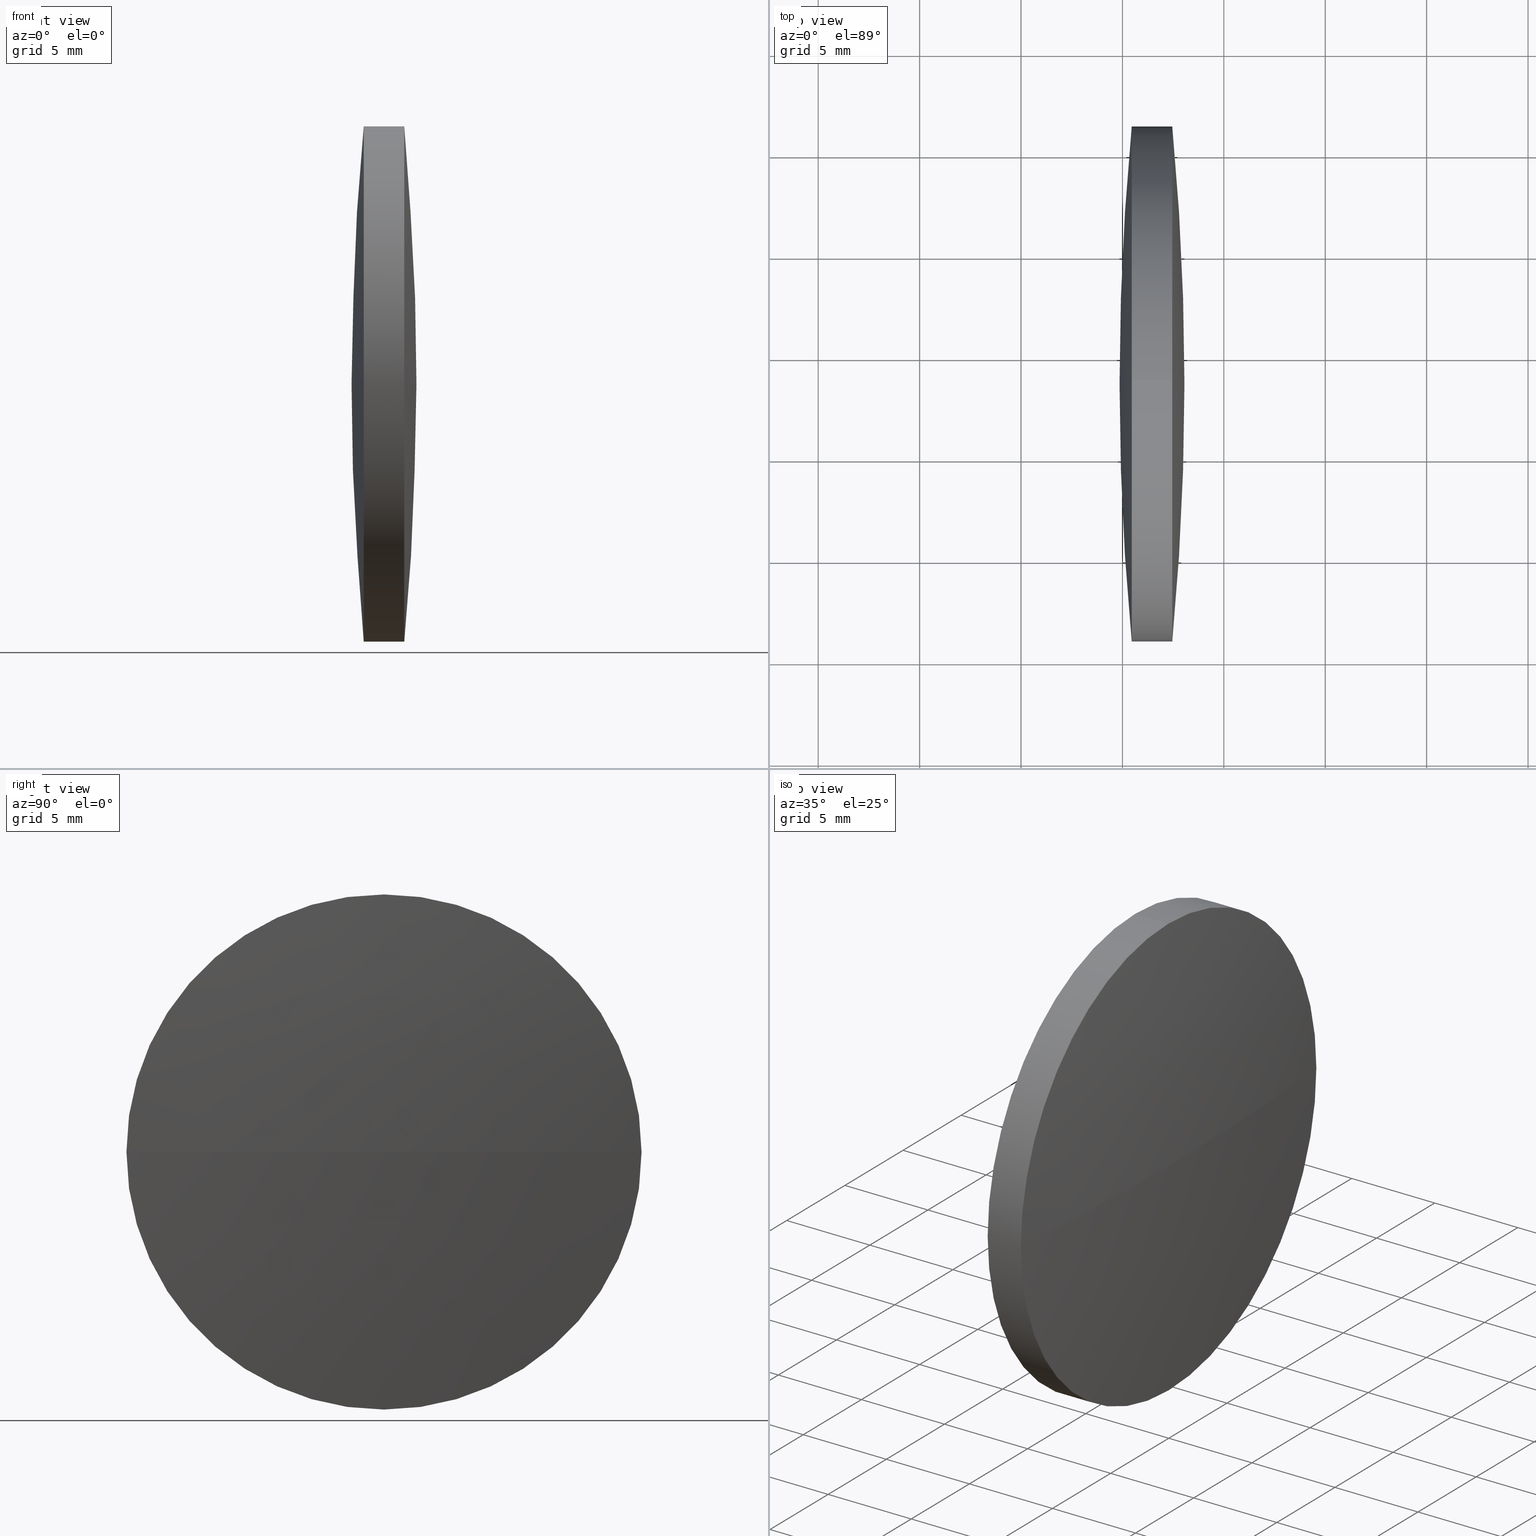
[diagram: canonical four-view strip — front | top / right | iso, engineering-drawing reading convention]
A machine part, canonical four-view strip (front | top / right | iso — engineering-drawing reading convention). The complete STEP part file that produces these views, byte-faithful:
ISO-10303-21;
HEADER;
FILE_DESCRIPTION (( 'STEP AP203' ),
    '1' );
FILE_NAME ('110156.STEP',
    '2019-07-09T05:30:51',
    ( '' ),
    ( '' ),
    'SwSTEP 2.0',
    'SolidWorks 2016',
    '' );
FILE_SCHEMA (( 'CONFIG_CONTROL_DESIGN' ));
ENDSEC;

DATA;
#1 = LOCAL_TIME ( 13, 30, 51.00000000000000000, #202 ) ;
#2 = EDGE_CURVE ( 'NONE', #343, #215, #87, .T. ) ;
#3 = ORIENTED_EDGE ( 'NONE', *, *, #2, .T. ) ;
#4 = DIRECTION ( 'NONE',  ( -1.000000000000000000, -0.0000000000000000000, -0.0000000000000000000 ) ) ;
#5 = CC_DESIGN_SECURITY_CLASSIFICATION ( #311, ( #200 ) ) ;
#6 = COORDINATED_UNIVERSAL_TIME_OFFSET ( 8, 0, .AHEAD. ) ;
#7 = DIRECTION ( 'NONE',  ( 0.0000000000000000000, 0.0000000000000000000, 1.000000000000000000 ) ) ;
#8 = CARTESIAN_POINT ( 'NONE',  ( 85.45852234609111500, 61.31611302318469800, 0.0000000000000000000 ) ) ;
#9 =( NAMED_UNIT ( * ) SI_UNIT ( $, .STERADIAN. ) SOLID_ANGLE_UNIT ( ) );
#10 = EDGE_CURVE ( 'NONE', #160, #180, #226, .T. ) ;
#11 = APPROVAL_ROLE ( '' ) ;
#12 = DATE_AND_TIME ( #219, #189 ) ;
#13 = DATE_AND_TIME ( #84, #159 ) ;
#14 = APPROVAL_STATUS ( 'not_yet_approved' ) ;
#15 = CC_DESIGN_PERSON_AND_ORGANIZATION_ASSIGNMENT ( #74, #310, ( #62 ) ) ;
#16 = PERSON_AND_ORGANIZATION_ROLE ( 'creator' ) ;
#17 = APPROVAL_STATUS ( 'not_yet_approved' ) ;
#18 = PERSON_AND_ORGANIZATION ( #89, #37 ) ;
#19 = ADVANCED_BREP_SHAPE_REPRESENTATION ( '110156', ( #199, #297 ), #85 ) ;
#20 = CC_DESIGN_PERSON_AND_ORGANIZATION_ASSIGNMENT ( #307, #286, ( #311 ) ) ;
#21 = LOCAL_TIME ( 13, 30, 51.00000000000000000, #122 ) ;
#22 = ORIENTED_EDGE ( 'NONE', *, *, #187, .F. ) ;
#23 = DIRECTION ( 'NONE',  ( -1.000000000000000000, -0.0000000000000000000, -0.0000000000000000000 ) ) ;
#24 = PERSON_AND_ORGANIZATION ( #89, #37 ) ;
#25 = CALENDAR_DATE ( 2019, 9, 7 ) ;
#26 = CARTESIAN_POINT ( 'NONE',  ( 87.45786520323396500, 48.61611302318478100, 0.0000000000000000000 ) ) ;
#27 = CC_DESIGN_DATE_AND_TIME_ASSIGNMENT ( #269, #123, ( #237 ) ) ;
#28 = CARTESIAN_POINT ( 'NONE',  ( 85.45852234609111500, 48.61611302318478100, 0.0000000000000000000 ) ) ;
#29 = DIRECTION ( 'NONE',  ( 0.0000000000000000000, -1.000000000000000000, -1.224646799147353000E-016 ) ) ;
#30 = APPROVAL_PERSON_ORGANIZATION ( #105, #185, #253 ) ;
#31 = EDGE_CURVE ( 'NONE', #296, #215, #308, .T. ) ;
#32 = VERTEX_POINT ( 'NONE', #131 ) ;
#33 = CARTESIAN_POINT ( 'NONE',  ( 87.45786520323396500, 48.61611302318478100, -12.69999999999999600 ) ) ;
#34 = CARTESIAN_POINT ( 'NONE',  ( 79.30540135083715800, 48.61611302318478100, 0.0000000000000000000 ) ) ;
#35 = APPROVAL_PERSON_ORGANIZATION ( #231, #79, #11 ) ;
#36 = CARTESIAN_POINT ( 'NONE',  ( 219.5296607706903600, 48.61611302318469500, 0.0000000000000000000 ) ) ;
#37 = ORGANIZATION ( 'δָ��', 'δָ��', '' ) ;
#38 = CARTESIAN_POINT ( 'NONE',  ( 0.0000000000000000000, 0.0000000000000000000, 0.0000000000000000000 ) ) ;
#39 = AXIS2_PLACEMENT_3D ( 'NONE', #225, #194, #29 ) ;
#40 = DIRECTION ( 'NONE',  ( 1.000000000000000000, 0.0000000000000000000, 0.0000000000000000000 ) ) ;
#41 = DATE_AND_TIME ( #112, #21 ) ;
#42 = CARTESIAN_POINT ( 'NONE',  ( 87.45786520323396500, 48.61611302318478100, 12.69999999999999600 ) ) ;
#43 = EDGE_LOOP ( 'NONE', ( #211, #250, #167, #63 ) ) ;
#44 = AXIS2_PLACEMENT_3D ( 'NONE', #36, #95, #67 ) ;
#45 = EDGE_CURVE ( 'NONE', #343, #160, #97, .T. ) ;
#46 = CC_DESIGN_APPROVAL ( #242, ( #237 ) ) ;
#47 = LOCAL_TIME ( 13, 30, 51.00000000000000000, #164 ) ;
#48 = FACE_OUTER_BOUND ( 'NONE', #206, .T. ) ;
#49 = ORIENTED_EDGE ( 'NONE', *, *, #45, .F. ) ;
#50 = EDGE_CURVE ( 'NONE', #315, #343, #221, .T. ) ;
#51 = DIRECTION ( 'NONE',  ( -1.000000000000000000, -0.0000000000000000000, -0.0000000000000000000 ) ) ;
#52 = ORIENTED_EDGE ( 'NONE', *, *, #283, .F. ) ;
#53 = AXIS2_PLACEMENT_3D ( 'NONE', #166, #224, #329 ) ;
#54 = PERSON_AND_ORGANIZATION ( #89, #37 ) ;
#55 = ORIENTED_EDGE ( 'NONE', *, *, #181, .T. ) ;
#56 = UNCERTAINTY_MEASURE_WITH_UNIT (LENGTH_MEASURE( 1.000000000000000100E-005 ), #93, 'distance_accuracy_value', 'NONE');
#57 = CARTESIAN_POINT ( 'NONE',  ( -46.61327322136452300, 48.61611302318488700, 0.0000000000000000000 ) ) ;
#58 = CC_DESIGN_APPROVAL ( #109, ( #62 ) ) ;
#59 = DIRECTION ( 'NONE',  ( -1.000000000000000000, -0.0000000000000000000, -0.0000000000000000000 ) ) ;
#60 = CARTESIAN_POINT ( 'NONE',  ( 85.45852234609111500, 48.61611302318478100, 12.69999999999999600 ) ) ;
#61 = APPROVAL_PERSON_ORGANIZATION ( #132, #242, #264 ) ;
#62 = PRODUCT_DEFINITION_FORMATION_WITH_SPECIFIED_SOURCE ( '�κ�', '', #99, .NOT_KNOWN. ) ;
#63 = ORIENTED_EDGE ( 'NONE', *, *, #81, .F. ) ;
#64 = CARTESIAN_POINT ( 'NONE',  ( 87.45786520323397900, 61.31611302318493300, 1.555301434917144000E-015 ) ) ;
#65 = APPROVAL_ROLE ( '' ) ;
#66 = APPLICATION_PROTOCOL_DEFINITION ( 'international standard', 'config_control_design', 1994, #71 ) ;
#67 = DIRECTION ( 'NONE',  ( 0.0000000000000000000, 1.000000000000000000, 0.0000000000000000000 ) ) ;
#68 = ORIENTED_EDGE ( 'NONE', *, *, #181, .F. ) ;
#69 = CC_DESIGN_SECURITY_CLASSIFICATION ( #237, ( #62 ) ) ;
#70 = SECURITY_CLASSIFICATION_LEVEL ( 'unclassified' ) ;
#71 = APPLICATION_CONTEXT ( 'configuration controlled 3d designs of mechanical parts and assemblies' ) ;
#72 = COORDINATED_UNIVERSAL_TIME_OFFSET ( 8, 0, .AHEAD. ) ;
#73 = ORIENTED_EDGE ( 'NONE', *, *, #10, .F. ) ;
#74 = PERSON_AND_ORGANIZATION ( #89, #37 ) ;
#75 = SPHERICAL_SURFACE ( 'NONE', #274, 134.6713041388842400 ) ;
#76 = CC_DESIGN_PERSON_AND_ORGANIZATION_ASSIGNMENT ( #83, #288, ( #237 ) ) ;
#77 = LOCAL_TIME ( 13, 30, 51.00000000000000000, #107 ) ;
#78 = DIRECTION ( 'NONE',  ( 0.0000000000000000000, 0.0000000000000000000, 1.000000000000000000 ) ) ;
#79 = APPROVAL ( #173, 'δָ��' ) ;
#80 = DIRECTION ( 'NONE',  ( -1.000000000000000000, -0.0000000000000000000, -0.0000000000000000000 ) ) ;
#81 = EDGE_CURVE ( 'NONE', #234, #156, #266, .T. ) ;
#82 = DIRECTION ( 'NONE',  ( -1.000000000000000000, -0.0000000000000000000, -0.0000000000000000000 ) ) ;
#83 = PERSON_AND_ORGANIZATION ( #89, #37 ) ;
#84 = CALENDAR_DATE ( 2019, 9, 7 ) ;
#85 =( GEOMETRIC_REPRESENTATION_CONTEXT ( 3 ) GLOBAL_UNCERTAINTY_ASSIGNED_CONTEXT ( ( #56 ) ) GLOBAL_UNIT_ASSIGNED_CONTEXT ( ( #93, #204, #9 ) ) REPRESENTATION_CONTEXT ( 'NONE', 'WORKASPACE' ) );
#86 = CARTESIAN_POINT ( 'NONE',  ( 85.45852234609111500, 48.61611302318478100, 0.0000000000000000000 ) ) ;
#87 = LINE ( 'NONE', #217, #301 ) ;
#88 = CARTESIAN_POINT ( 'NONE',  ( 87.45786520323396500, 48.61611302318478100, 0.0000000000000000000 ) ) ;
#89 = PERSON ( 'δָ��', 'δָ��', 'δָ��', ('δָ��'), ('δָ��'), ('δָ��') ) ;
#90 = ORIENTED_EDGE ( 'NONE', *, *, #10, .T. ) ;
#91 = DIRECTION ( 'NONE',  ( 0.0000000000000000000, 1.224646799147353200E-016, -1.000000000000000000 ) ) ;
#92 = CARTESIAN_POINT ( 'NONE',  ( -46.61327322136452300, 48.61611302318488700, 0.0000000000000000000 ) ) ;
#93 =( LENGTH_UNIT ( ) NAMED_UNIT ( * ) SI_UNIT ( .MILLI., .METRE. ) );
#94 = SPHERICAL_SURFACE ( 'NONE', #44, 134.6713041388849500 ) ;
#95 = DIRECTION ( 'NONE',  ( -0.0000000000000000000, 0.0000000000000000000, -1.000000000000000000 ) ) ;
#96 = PERSON_AND_ORGANIZATION_ROLE ( 'design_supplier' ) ;
#97 = CIRCLE ( 'NONE', #233, 12.69999999999999600 ) ;
#98 = PRODUCT_RELATED_PRODUCT_CATEGORY ( 'detail', '', ( #153 ) ) ;
#99 = PRODUCT ( '110156', '110156', '', ( #254 ) ) ;
#100 = ADVANCED_FACE ( 'NONE', ( #48 ), #108, .T. ) ;
#101 = DATE_AND_TIME ( #171, #77 ) ;
#102 = LOCAL_TIME ( 13, 30, 51.00000000000000000, #243 ) ;
#103 = EDGE_CURVE ( 'NONE', #299, #315, #241, .T. ) ;
#104 = CC_DESIGN_APPROVAL ( #185, ( #200 ) ) ;
#105 = PERSON_AND_ORGANIZATION ( #89, #37 ) ;
#106 = ORIENTED_EDGE ( 'NONE', *, *, #341, .T. ) ;
#107 = COORDINATED_UNIVERSAL_TIME_OFFSET ( 8, 0, .AHEAD. ) ;
#108 = CYLINDRICAL_SURFACE ( 'NONE', #53, 12.69999999999999600 ) ;
#109 = APPROVAL ( #203, 'δָ��' ) ;
#110 = AXIS2_PLACEMENT_3D ( 'NONE', #141, #91, #188 ) ;
#111 = DIRECTION ( 'NONE',  ( 0.0000000000000000000, 0.0000000000000000000, 1.000000000000000000 ) ) ;
#112 = CALENDAR_DATE ( 2019, 9, 7 ) ;
#113 = CARTESIAN_POINT ( 'NONE',  ( 219.5296607706903600, 48.61611302318469500, 0.0000000000000000000 ) ) ;
#114 = PRODUCT_RELATED_PRODUCT_CATEGORY ( 'detail', '', ( #99 ) ) ;
#115 = CC_DESIGN_DATE_AND_TIME_ASSIGNMENT ( #101, #331, ( #311 ) ) ;
#116 = DATE_AND_TIME ( #284, #252 ) ;
#117 = SPHERICAL_SURFACE ( 'NONE', #182, 134.6713041388849500 ) ;
#118 = EDGE_CURVE ( 'NONE', #299, #160, #148, .T. ) ;
#119 = APPROVAL_ROLE ( '' ) ;
#120 = PERSON_AND_ORGANIZATION_ROLE ( 'design_owner' ) ;
#121 = DATE_AND_TIME ( #209, #147 ) ;
#122 = COORDINATED_UNIVERSAL_TIME_OFFSET ( 8, 0, .AHEAD. ) ;
#123 = DATE_TIME_ROLE ( 'classification_date' ) ;
#124 = ORIENTED_EDGE ( 'NONE', *, *, #45, .T. ) ;
#125 = MECHANICAL_CONTEXT ( 'NONE', #334, 'mechanical' ) ;
#126 = APPROVAL_PERSON_ORGANIZATION ( #24, #109, #119 ) ;
#127 = ORIENTED_EDGE ( 'NONE', *, *, #341, .F. ) ;
#128 = CIRCLE ( 'NONE', #157, 12.69999999999999600 ) ;
#129 = AXIS2_PLACEMENT_3D ( 'NONE', #28, #228, #7 ) ;
#130 = DESIGN_CONTEXT ( 'detailed design', #235, 'design' ) ;
#131 = CARTESIAN_POINT ( 'NONE',  ( 85.45852234609111500, 48.61611302318478100, -12.69999999999999600 ) ) ;
#132 = PERSON_AND_ORGANIZATION ( #89, #37 ) ;
#133 = AXIS2_PLACEMENT_3D ( 'NONE', #38, #170, #40 ) ;
#134 = AXIS2_PLACEMENT_3D ( 'NONE', #300, #80, #78 ) ;
#135 = APPROVAL_DATE_TIME ( #116, #242 ) ;
#136 = FACE_OUTER_BOUND ( 'NONE', #43, .T. ) ;
#137 = ORIENTED_EDGE ( 'NONE', *, *, #103, .F. ) ;
#138 = CC_DESIGN_DATE_AND_TIME_ASSIGNMENT ( #41, #261, ( #192 ) ) ;
#139 = CARTESIAN_POINT ( 'NONE',  ( 88.05803091751970200, 48.61611302318488000, 0.0000000000000000000 ) ) ;
#140 = DIRECTION ( 'NONE',  ( 0.0000000000000000000, 0.0000000000000000000, 1.000000000000000000 ) ) ;
#141 = CARTESIAN_POINT ( 'NONE',  ( 219.5296607706903600, 48.61611302318469500, 0.0000000000000000000 ) ) ;
#142 = DATE_AND_TIME ( #294, #258 ) ;
#143 = ORIENTED_EDGE ( 'NONE', *, *, #103, .T. ) ;
#144 = DIRECTION ( 'NONE',  ( 1.000000000000000000, 0.0000000000000000000, 0.0000000000000000000 ) ) ;
#145 = DIRECTION ( 'NONE',  ( 0.0000000000000000000, 0.0000000000000000000, 1.000000000000000000 ) ) ;
#146 = CC_DESIGN_PERSON_AND_ORGANIZATION_ASSIGNMENT ( #265, #96, ( #200 ) ) ;
#147 = LOCAL_TIME ( 13, 30, 51.00000000000000000, #6 ) ;
#148 = CIRCLE ( 'NONE', #39, 134.6713041388842400 ) ;
#149 = ORIENTED_EDGE ( 'NONE', *, *, #118, .F. ) ;
#150 = APPLICATION_PROTOCOL_DEFINITION ( 'international standard', 'config_control_design', 1994, #197 ) ;
#151 = DESIGN_CONTEXT ( 'detailed design', #197, 'design' ) ;
#152 = APPROVAL_STATUS ( 'not_yet_approved' ) ;
#153 = PRODUCT ( '110156', '110156', '', ( #125 ) ) ;
#154 = DIRECTION ( 'NONE',  ( 0.0000000000000000000, 0.0000000000000000000, 1.000000000000000000 ) ) ;
#155 = APPROVAL_PERSON_ORGANIZATION ( #54, #220, #175 ) ;
#156 = VERTEX_POINT ( 'NONE', #227 ) ;
#157 = AXIS2_PLACEMENT_3D ( 'NONE', #86, #276, #251 ) ;
#158 = CALENDAR_DATE ( 2019, 9, 7 ) ;
#159 = LOCAL_TIME ( 13, 30, 51.00000000000000000, #190 ) ;
#160 = VERTEX_POINT ( 'NONE', #64 ) ;
#161 = AXIS2_PLACEMENT_3D ( 'NONE', #88, #4, #193 ) ;
#162 = CYLINDRICAL_SURFACE ( 'NONE', #248, 12.69999999999999600 ) ;
#163 = EDGE_LOOP ( 'NONE', ( #328, #244, #106, #275 ) ) ;
#164 = COORDINATED_UNIVERSAL_TIME_OFFSET ( 8, 0, .AHEAD. ) ;
#165 = CIRCLE ( 'NONE', #110, 134.6713041388849500 ) ;
#166 = CARTESIAN_POINT ( 'NONE',  ( 79.30540135083715800, 48.61611302318478100, 0.0000000000000000000 ) ) ;
#167 = ORIENTED_EDGE ( 'NONE', *, *, #174, .T. ) ;
#168 = CARTESIAN_POINT ( 'NONE',  ( 79.30540135083715800, 48.61611302318478100, -12.69999999999999600 ) ) ;
#169 = CC_DESIGN_PERSON_AND_ORGANIZATION_ASSIGNMENT ( #246, #120, ( #153 ) ) ;
#170 = DIRECTION ( 'NONE',  ( 0.0000000000000000000, 0.0000000000000000000, 1.000000000000000000 ) ) ;
#171 = CALENDAR_DATE ( 2019, 9, 7 ) ;
#172 = APPROVAL_PERSON_ORGANIZATION ( #232, #230, #65 ) ;
#173 = APPROVAL_STATUS ( 'not_yet_approved' ) ;
#174 = EDGE_CURVE ( 'NONE', #296, #156, #165, .T. ) ;
#175 = APPROVAL_ROLE ( '' ) ;
#176 = APPLICATION_PROTOCOL_DEFINITION ( 'international standard', 'config_control_design', 1994, #334 ) ;
#177 = AXIS2_PLACEMENT_3D ( 'NONE', #57, #140, #277 ) ;
#178 = DIRECTION ( 'NONE',  ( 1.000000000000000000, 0.0000000000000000000, 0.0000000000000000000 ) ) ;
#179 = SHAPE_DEFINITION_REPRESENTATION ( #218, #19 ) ;
#180 = VERTEX_POINT ( 'NONE', #33 ) ;
#181 = EDGE_CURVE ( 'NONE', #180, #32, #295, .T. ) ;
#182 = AXIS2_PLACEMENT_3D ( 'NONE', #113, #304, #337 ) ;
#183 = PERSON_AND_ORGANIZATION ( #89, #37 ) ;
#184 = APPROVAL_DATE_TIME ( #13, #230 ) ;
#185 = APPROVAL ( #17, 'δָ��' ) ;
#186 = FACE_OUTER_BOUND ( 'NONE', #287, .T. ) ;
#187 = EDGE_CURVE ( 'NONE', #234, #32, #285, .T. ) ;
#188 = DIRECTION ( 'NONE',  ( 0.0000000000000000000, 1.000000000000000000, 1.224646799147353500E-016 ) ) ;
#189 = LOCAL_TIME ( 13, 30, 51.00000000000000000, #72 ) ;
#190 = COORDINATED_UNIVERSAL_TIME_OFFSET ( 8, 0, .AHEAD. ) ;
#191 = ORIENTED_EDGE ( 'NONE', *, *, #50, .T. ) ;
#192 = PRODUCT_DEFINITION ( 'δ֪', '', #200, #151 ) ;
#193 = DIRECTION ( 'NONE',  ( 0.0000000000000000000, 0.0000000000000000000, 1.000000000000000000 ) ) ;
#194 = DIRECTION ( 'NONE',  ( 0.0000000000000000000, -1.224646799147353200E-016, 1.000000000000000000 ) ) ;
#195 = COORDINATED_UNIVERSAL_TIME_OFFSET ( 8, 0, .AHEAD. ) ;
#196 = CARTESIAN_POINT ( 'NONE',  ( 219.5296607706903600, 48.61611302318469500, 0.0000000000000000000 ) ) ;
#197 = APPLICATION_CONTEXT ( 'configuration controlled 3d designs of mechanical parts and assemblies' ) ;
#198 = CARTESIAN_POINT ( 'NONE',  ( 85.45852234609111500, 48.61611302318478100, 0.0000000000000000000 ) ) ;
#199 = MANIFOLD_SOLID_BREP ( '��ת1', #340 ) ;
#200 = PRODUCT_DEFINITION_FORMATION_WITH_SPECIFIED_SOURCE ( '�κ�', '', #153, .NOT_KNOWN. ) ;
#201 = DIRECTION ( 'NONE',  ( -1.000000000000000000, -0.0000000000000000000, -0.0000000000000000000 ) ) ;
#202 = COORDINATED_UNIVERSAL_TIME_OFFSET ( 8, 0, .AHEAD. ) ;
#203 = APPROVAL_STATUS ( 'not_yet_approved' ) ;
#204 =( NAMED_UNIT ( * ) PLANE_ANGLE_UNIT ( ) SI_UNIT ( $, .RADIAN. ) );
#205 = CALENDAR_DATE ( 2019, 9, 7 ) ;
#206 = EDGE_LOOP ( 'NONE', ( #68, #222, #191, #3, #239, #262 ) ) ;
#207 = CC_DESIGN_PERSON_AND_ORGANIZATION_ASSIGNMENT ( #183, #16, ( #200 ) ) ;
#208 = AXIS2_PLACEMENT_3D ( 'NONE', #322, #271, #272 ) ;
#209 = CALENDAR_DATE ( 2019, 9, 7 ) ;
#210 = SPHERICAL_SURFACE ( 'NONE', #177, 134.6713041388842400 ) ;
#211 = ORIENTED_EDGE ( 'NONE', *, *, #187, .T. ) ;
#212 = CC_DESIGN_PERSON_AND_ORGANIZATION_ASSIGNMENT ( #18, #259, ( #99 ) ) ;
#213 = EDGE_CURVE ( 'NONE', #32, #296, #128, .T. ) ;
#214 = DATE_AND_TIME ( #25, #102 ) ;
#215 = VERTEX_POINT ( 'NONE', #60 ) ;
#216 = DIRECTION ( 'NONE',  ( 0.0000000000000000000, 0.0000000000000000000, 1.000000000000000000 ) ) ;
#217 = CARTESIAN_POINT ( 'NONE',  ( 79.30540135083715800, 48.61611302318478100, 12.69999999999999600 ) ) ;
#218 = PRODUCT_DEFINITION_SHAPE ( 'NONE', 'NONE',  #263 ) ;
#219 = CALENDAR_DATE ( 2019, 9, 7 ) ;
#220 = APPROVAL ( #14, 'δָ��' ) ;
#221 = CIRCLE ( 'NONE', #247, 12.69999999999999600 ) ;
#222 = ORIENTED_EDGE ( 'NONE', *, *, #283, .T. ) ;
#223 = CARTESIAN_POINT ( 'NONE',  ( -46.61327322136452300, 48.61611302318488700, 0.0000000000000000000 ) ) ;
#224 = DIRECTION ( 'NONE',  ( -1.000000000000000000, -0.0000000000000000000, -0.0000000000000000000 ) ) ;
#225 = CARTESIAN_POINT ( 'NONE',  ( -46.61327322136452300, 48.61611302318488700, 0.0000000000000000000 ) ) ;
#226 = CIRCLE ( 'NONE', #134, 12.69999999999999600 ) ;
#227 = CARTESIAN_POINT ( 'NONE',  ( 84.85835663180540700, 48.61611302318470300, 0.0000000000000000000 ) ) ;
#228 = DIRECTION ( 'NONE',  ( -1.000000000000000000, -0.0000000000000000000, -0.0000000000000000000 ) ) ;
#229 = ADVANCED_FACE ( 'NONE', ( #335 ), #75, .T. ) ;
#230 = APPROVAL ( #152, 'δָ��' ) ;
#231 = PERSON_AND_ORGANIZATION ( #89, #37 ) ;
#232 = PERSON_AND_ORGANIZATION ( #89, #37 ) ;
#233 = AXIS2_PLACEMENT_3D ( 'NONE', #345, #23, #216 ) ;
#234 = VERTEX_POINT ( 'NONE', #8 ) ;
#235 = APPLICATION_CONTEXT ( 'configuration controlled 3d designs of mechanical parts and assemblies' ) ;
#236 = PERSON_AND_ORGANIZATION_ROLE ( 'design_supplier' ) ;
#237 = SECURITY_CLASSIFICATION ( '', '', #70 ) ;
#238 = PERSON_AND_ORGANIZATION ( #89, #37 ) ;
#239 = ORIENTED_EDGE ( 'NONE', *, *, #31, .F. ) ;
#240 = APPROVAL_DATE_TIME ( #142, #79 ) ;
#241 = CIRCLE ( 'NONE', #332, 134.6713041388842400 ) ;
#242 = APPROVAL ( #293, 'δָ��' ) ;
#243 = COORDINATED_UNIVERSAL_TIME_OFFSET ( 8, 0, .AHEAD. ) ;
#244 = ORIENTED_EDGE ( 'NONE', *, *, #31, .T. ) ;
#245 = CC_DESIGN_APPROVAL ( #79, ( #311 ) ) ;
#246 = PERSON_AND_ORGANIZATION ( #89, #37 ) ;
#247 = AXIS2_PLACEMENT_3D ( 'NONE', #26, #82, #273 ) ;
#248 = AXIS2_PLACEMENT_3D ( 'NONE', #34, #327, #279 ) ;
#249 = DIRECTION ( 'NONE',  ( 0.0000000000000000000, -1.000000000000000000, 0.0000000000000000000 ) ) ;
#250 = ORIENTED_EDGE ( 'NONE', *, *, #213, .T. ) ;
#251 = DIRECTION ( 'NONE',  ( 0.0000000000000000000, 0.0000000000000000000, 1.000000000000000000 ) ) ;
#252 = LOCAL_TIME ( 13, 30, 51.00000000000000000, #195 ) ;
#253 = APPROVAL_ROLE ( '' ) ;
#254 = MECHANICAL_CONTEXT ( 'NONE', #71, 'mechanical' ) ;
#255 = AXIS2_PLACEMENT_3D ( 'NONE', #198, #201, #154 ) ;
#256 = ADVANCED_FACE ( 'NONE', ( #186 ), #162, .T. ) ;
#257 = CARTESIAN_POINT ( 'NONE',  ( 0.0000000000000000000, 0.0000000000000000000, 0.0000000000000000000 ) ) ;
#258 = LOCAL_TIME ( 13, 30, 51.00000000000000000, #339 ) ;
#259 = PERSON_AND_ORGANIZATION_ROLE ( 'design_owner' ) ;
#260 = ORIENTED_EDGE ( 'NONE', *, *, #2, .F. ) ;
#261 = DATE_TIME_ROLE ( 'creation_date' ) ;
#262 = ORIENTED_EDGE ( 'NONE', *, *, #213, .F. ) ;
#263 = PRODUCT_DEFINITION ( 'δ֪', '', #62, #130 ) ;
#264 = APPROVAL_ROLE ( '' ) ;
#265 = PERSON_AND_ORGANIZATION ( #89, #37 ) ;
#266 = CIRCLE ( 'NONE', #319, 134.6713041388849500 ) ;
#267 = EDGE_LOOP ( 'NONE', ( #149, #143, #52, #73 ) ) ;
#268 = CC_DESIGN_APPROVAL ( #230, ( #192 ) ) ;
#269 = DATE_AND_TIME ( #205, #1 ) ;
#270 = EDGE_LOOP ( 'NONE', ( #137, #336, #49, #292 ) ) ;
#271 = DIRECTION ( 'NONE',  ( -1.000000000000000000, -0.0000000000000000000, -0.0000000000000000000 ) ) ;
#272 = DIRECTION ( 'NONE',  ( 0.0000000000000000000, 0.0000000000000000000, 1.000000000000000000 ) ) ;
#273 = DIRECTION ( 'NONE',  ( 0.0000000000000000000, 0.0000000000000000000, 1.000000000000000000 ) ) ;
#274 = AXIS2_PLACEMENT_3D ( 'NONE', #223, #111, #249 ) ;
#275 = ORIENTED_EDGE ( 'NONE', *, *, #81, .T. ) ;
#276 = DIRECTION ( 'NONE',  ( -1.000000000000000000, -0.0000000000000000000, -0.0000000000000000000 ) ) ;
#277 = DIRECTION ( 'NONE',  ( 0.0000000000000000000, -1.000000000000000000, 0.0000000000000000000 ) ) ;
#278 = PERSON_AND_ORGANIZATION ( #89, #37 ) ;
#279 = DIRECTION ( 'NONE',  ( 0.0000000000000000000, 0.0000000000000000000, 1.000000000000000000 ) ) ;
#280 = CC_DESIGN_PERSON_AND_ORGANIZATION_ASSIGNMENT ( #344, #282, ( #263 ) ) ;
#281 = CARTESIAN_POINT ( 'NONE',  ( 87.45786520323397900, 35.91611302318473500, 0.0000000000000000000 ) ) ;
#282 = PERSON_AND_ORGANIZATION_ROLE ( 'creator' ) ;
#283 = EDGE_CURVE ( 'NONE', #180, #315, #305, .T. ) ;
#284 = CALENDAR_DATE ( 2019, 9, 7 ) ;
#285 = CIRCLE ( 'NONE', #129, 12.69999999999999600 ) ;
#286 = PERSON_AND_ORGANIZATION_ROLE ( 'classification_officer' ) ;
#287 = EDGE_LOOP ( 'NONE', ( #90, #55, #22, #127, #260, #124 ) ) ;
#288 = PERSON_AND_ORGANIZATION_ROLE ( 'classification_officer' ) ;
#289 = CC_DESIGN_PERSON_AND_ORGANIZATION_ASSIGNMENT ( #238, #290, ( #192 ) ) ;
#290 = PERSON_AND_ORGANIZATION_ROLE ( 'creator' ) ;
#291 = APPROVAL_DATE_TIME ( #324, #109 ) ;
#292 = ORIENTED_EDGE ( 'NONE', *, *, #50, .F. ) ;
#293 = APPROVAL_STATUS ( 'not_yet_approved' ) ;
#294 = CALENDAR_DATE ( 2019, 9, 7 ) ;
#295 = LINE ( 'NONE', #168, #298 ) ;
#296 = VERTEX_POINT ( 'NONE', #303 ) ;
#297 = AXIS2_PLACEMENT_3D ( 'NONE', #257, #145, #178 ) ;
#298 = VECTOR ( 'NONE', #59, 1000.000000000000000 ) ;
#299 = VERTEX_POINT ( 'NONE', #139 ) ;
#300 = CARTESIAN_POINT ( 'NONE',  ( 87.45786520323396500, 48.61611302318478100, 0.0000000000000000000 ) ) ;
#301 = VECTOR ( 'NONE', #51, 1000.000000000000000 ) ;
#302 = ADVANCED_FACE ( 'NONE', ( #314 ), #210, .T. ) ;
#303 = CARTESIAN_POINT ( 'NONE',  ( 85.45852234609111500, 35.91611302318477800, -1.555301434917127800E-015 ) ) ;
#304 = DIRECTION ( 'NONE',  ( -0.0000000000000000000, 0.0000000000000000000, -1.000000000000000000 ) ) ;
#305 = CIRCLE ( 'NONE', #161, 12.69999999999999600 ) ;
#306 = DIRECTION ( 'NONE',  ( 0.0000000000000000000, 0.0000000000000000000, -1.000000000000000000 ) ) ;
#307 = PERSON_AND_ORGANIZATION ( #89, #37 ) ;
#308 = CIRCLE ( 'NONE', #208, 12.69999999999999600 ) ;
#309 = ADVANCED_FACE ( 'NONE', ( #318 ), #117, .T. ) ;
#310 = PERSON_AND_ORGANIZATION_ROLE ( 'creator' ) ;
#311 = SECURITY_CLASSIFICATION ( '', '', #330 ) ;
#312 = DATE_TIME_ROLE ( 'creation_date' ) ;
#313 = APPLICATION_PROTOCOL_DEFINITION ( 'international standard', 'config_control_design', 1994, #235 ) ;
#314 = FACE_OUTER_BOUND ( 'NONE', #270, .T. ) ;
#315 = VERTEX_POINT ( 'NONE', #281 ) ;
#316 = PRODUCT_DEFINITION_SHAPE ( 'NONE', 'NONE',  #192 ) ;
#317 = APPROVAL_DATE_TIME ( #12, #220 ) ;
#318 = FACE_OUTER_BOUND ( 'NONE', #163, .T. ) ;
#319 = AXIS2_PLACEMENT_3D ( 'NONE', #196, #325, #144 ) ;
#320 = CIRCLE ( 'NONE', #255, 12.69999999999999600 ) ;
#321 = CC_DESIGN_PERSON_AND_ORGANIZATION_ASSIGNMENT ( #278, #236, ( #62 ) ) ;
#322 = CARTESIAN_POINT ( 'NONE',  ( 85.45852234609111500, 48.61611302318478100, 0.0000000000000000000 ) ) ;
#323 = CC_DESIGN_APPROVAL ( #220, ( #263 ) ) ;
#324 = DATE_AND_TIME ( #158, #47 ) ;
#325 = DIRECTION ( 'NONE',  ( -0.0000000000000000000, 0.0000000000000000000, 1.000000000000000000 ) ) ;
#326 = DIRECTION ( 'NONE',  ( -1.000000000000000000, 0.0000000000000000000, 0.0000000000000000000 ) ) ;
#327 = DIRECTION ( 'NONE',  ( -1.000000000000000000, -0.0000000000000000000, -0.0000000000000000000 ) ) ;
#328 = ORIENTED_EDGE ( 'NONE', *, *, #174, .F. ) ;
#329 = DIRECTION ( 'NONE',  ( 0.0000000000000000000, 0.0000000000000000000, 1.000000000000000000 ) ) ;
#330 = SECURITY_CLASSIFICATION_LEVEL ( 'unclassified' ) ;
#331 = DATE_TIME_ROLE ( 'classification_date' ) ;
#332 = AXIS2_PLACEMENT_3D ( 'NONE', #92, #306, #326 ) ;
#333 = APPROVAL_DATE_TIME ( #214, #185 ) ;
#334 = APPLICATION_CONTEXT ( 'configuration controlled 3d designs of mechanical parts and assemblies' ) ;
#335 = FACE_OUTER_BOUND ( 'NONE', #267, .T. ) ;
#336 = ORIENTED_EDGE ( 'NONE', *, *, #118, .T. ) ;
#337 = DIRECTION ( 'NONE',  ( 0.0000000000000000000, 1.000000000000000000, 0.0000000000000000000 ) ) ;
#338 = ADVANCED_FACE ( 'NONE', ( #136 ), #94, .T. ) ;
#339 = COORDINATED_UNIVERSAL_TIME_OFFSET ( 8, 0, .AHEAD. ) ;
#340 = CLOSED_SHELL ( 'NONE', ( #256, #302, #338, #309, #229, #100 ) ) ;
#341 = EDGE_CURVE ( 'NONE', #215, #234, #320, .T. ) ;
#342 = CC_DESIGN_DATE_AND_TIME_ASSIGNMENT ( #121, #312, ( #263 ) ) ;
#343 = VERTEX_POINT ( 'NONE', #42 ) ;
#344 = PERSON_AND_ORGANIZATION ( #89, #37 ) ;
#345 = CARTESIAN_POINT ( 'NONE',  ( 87.45786520323396500, 48.61611302318478100, 0.0000000000000000000 ) ) ;
ENDSEC;
END-ISO-10303-21;
